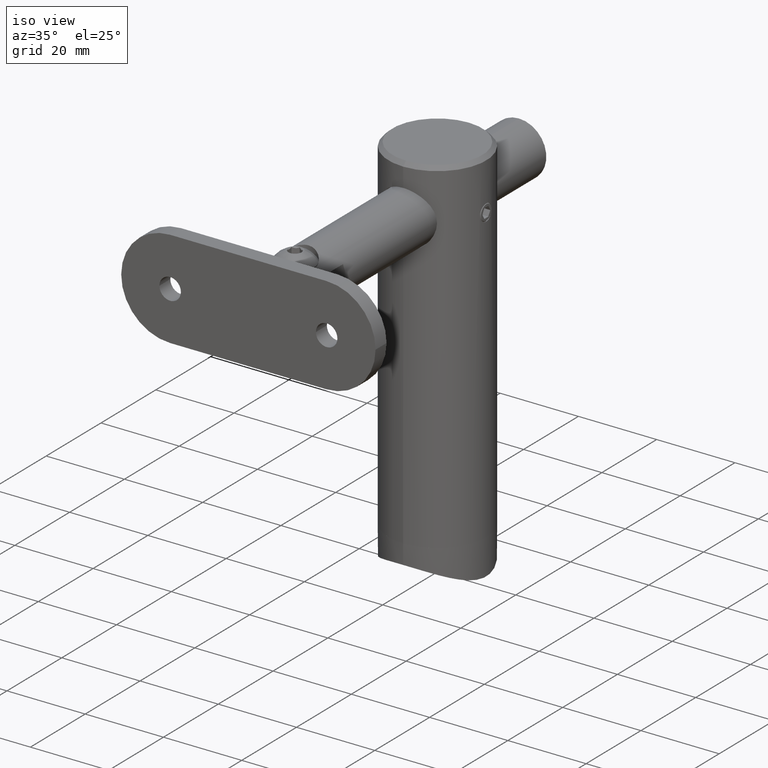
[diagram: clean part render]
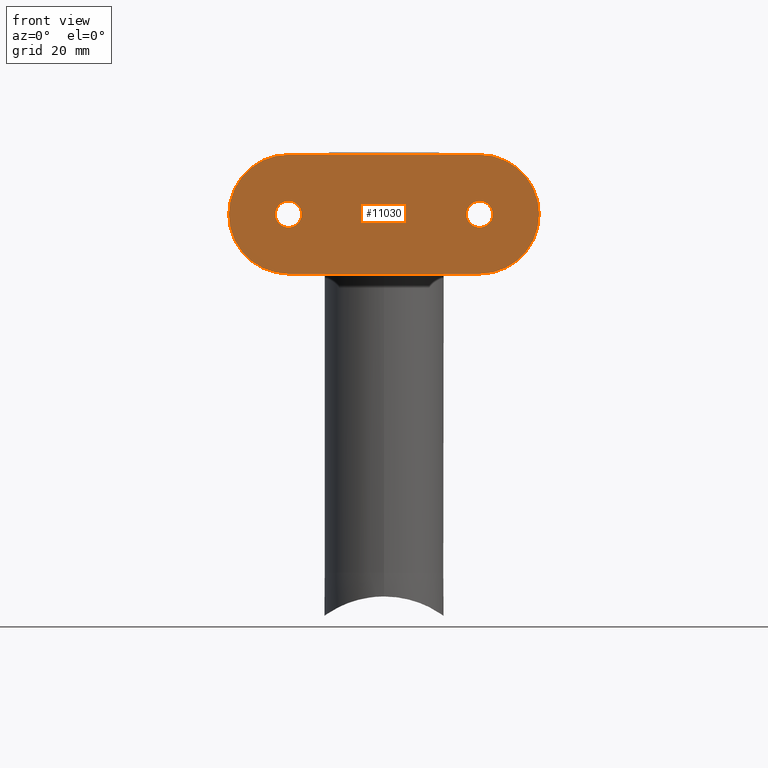
[diagram: tour spotlight — one face highlighted and labeled with its STEP entity id]
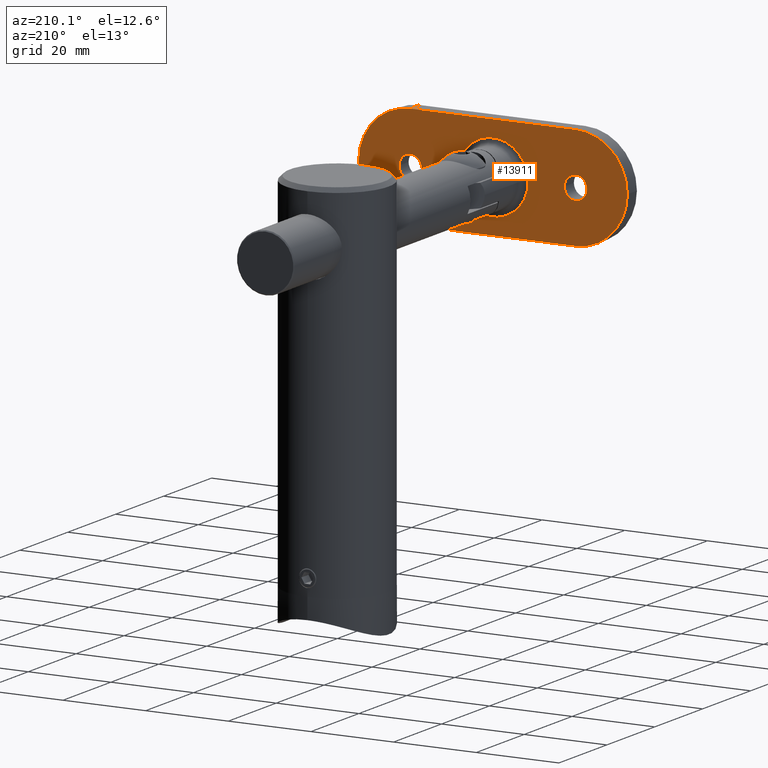
[diagram: tour spotlight — one face highlighted and labeled with its STEP entity id]
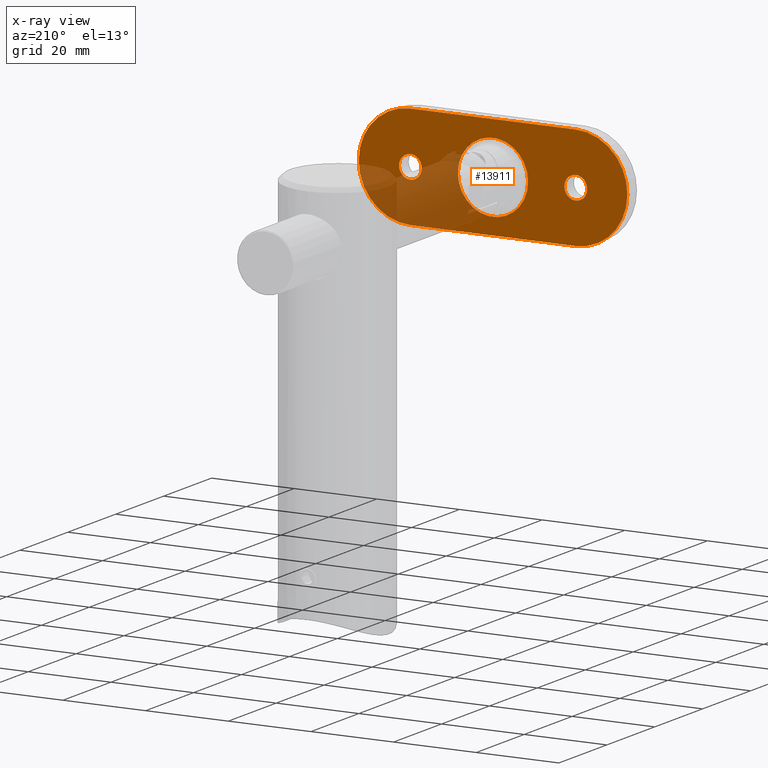
[diagram: x-ray of the same camera — body ghosted, this tour face saturated]
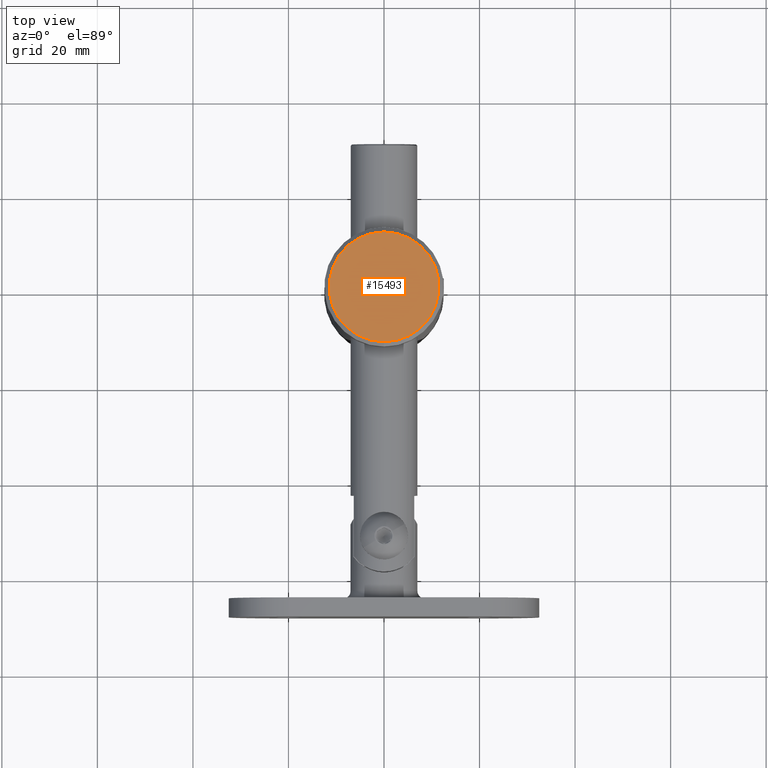
[diagram: tour spotlight — one face highlighted and labeled with its STEP entity id]
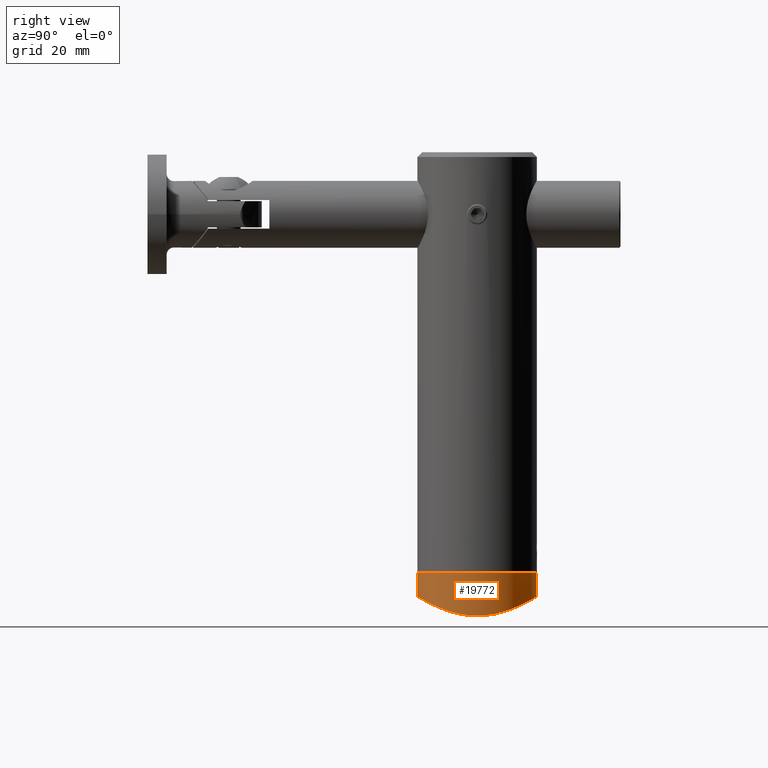
[diagram: tour spotlight — one face highlighted and labeled with its STEP entity id]
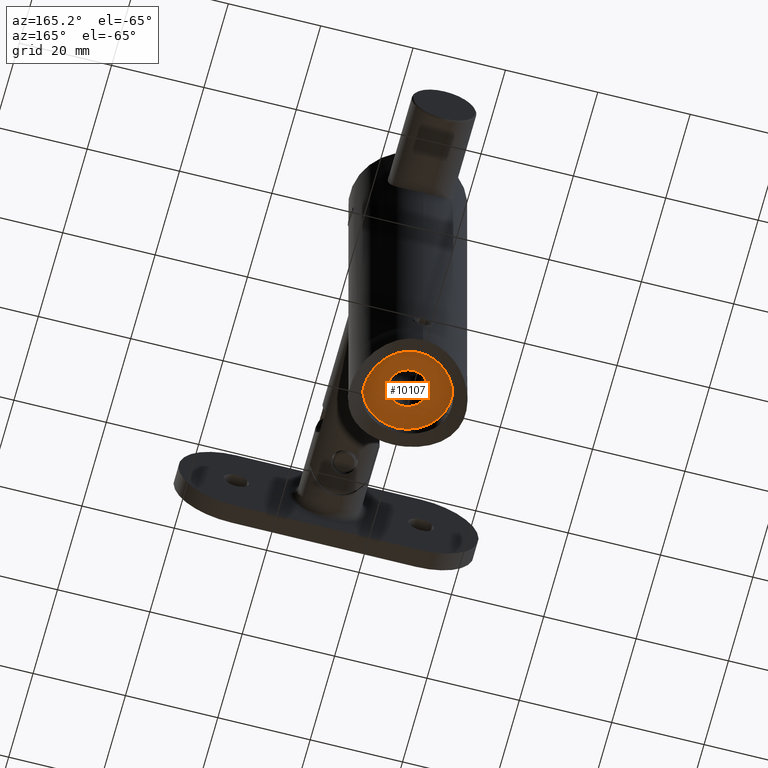
[diagram: tour spotlight — one face highlighted and labeled with its STEP entity id]
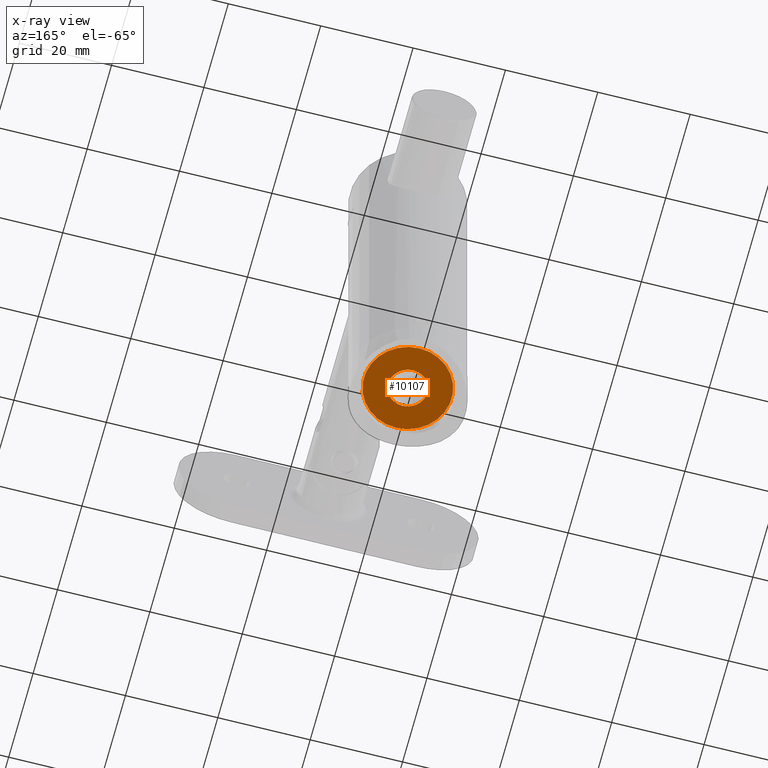
[diagram: x-ray of the same camera — body ghosted, this tour face saturated]
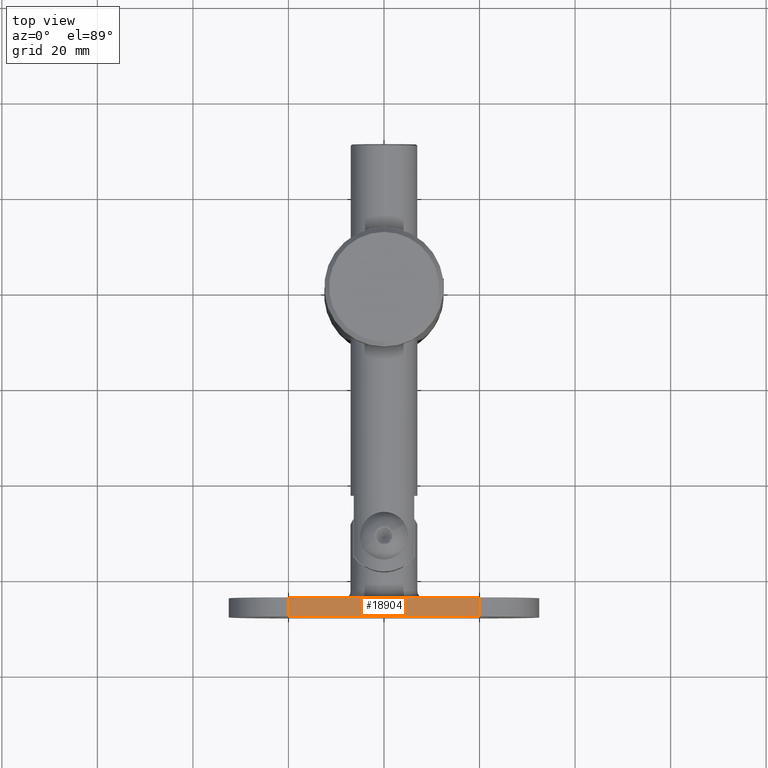
[diagram: tour spotlight — one face highlighted and labeled with its STEP entity id]
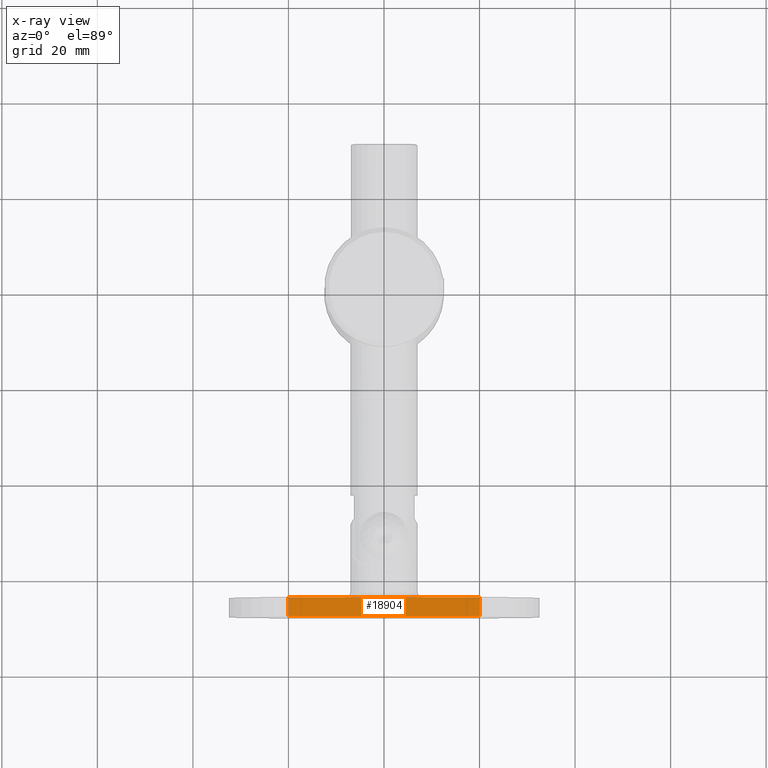
[diagram: x-ray of the same camera — body ghosted, this tour face saturated]
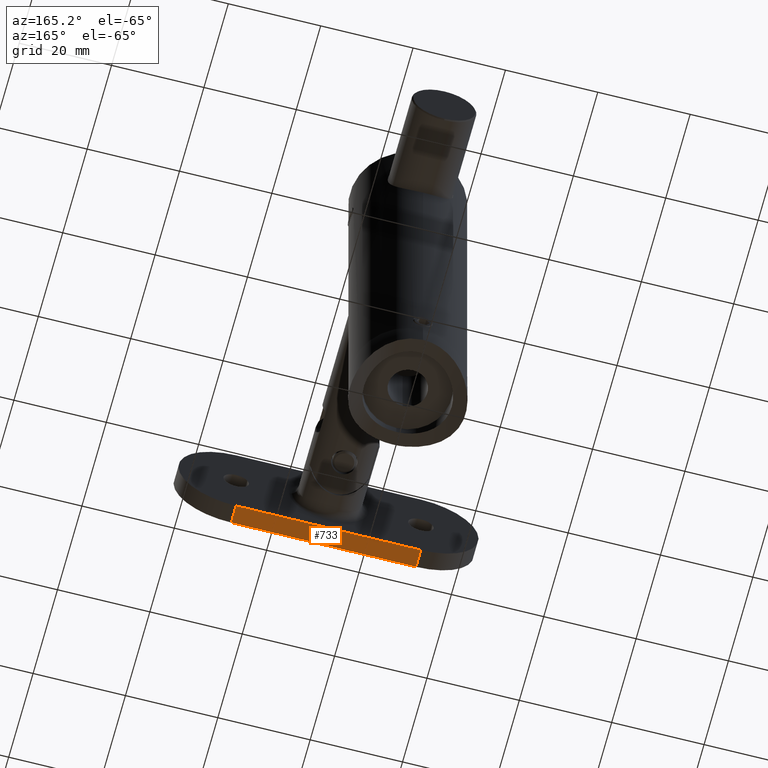
[diagram: tour spotlight — one face highlighted and labeled with its STEP entity id]
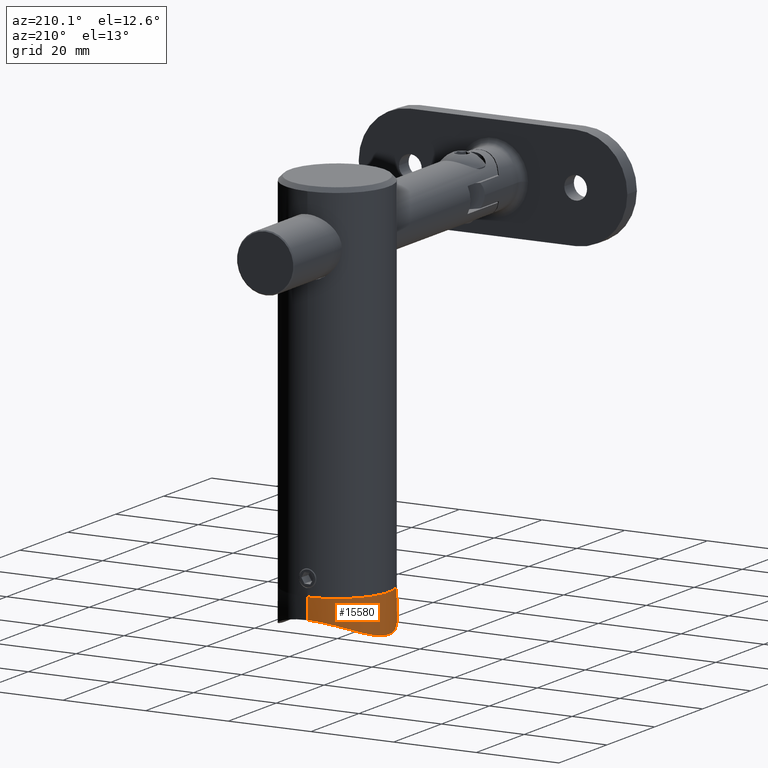
[diagram: tour spotlight — one face highlighted and labeled with its STEP entity id]
A machine part: a face-by-face anatomy tour. The part has 368 B-rep faces; the first image is the clean iso view, then the 8 largest visible faces are spotlighted one at a time (largest first), each with its STEP entity span.

Face 1 — front view, entity #11030. In plain terms, the highlighted planar face has unit normal (-0, 1, -0).
Definition (entity closure, byte-faithful):
#140 = ORIENTED_EDGE ( 'NONE', *, *, #7083, .T. ) ;
#705 = ORIENTED_EDGE ( 'NONE', *, *, #1649, .T. ) ;
#1336 = VERTEX_POINT ( 'NONE', #12923 ) ;
#1529 = CIRCLE ( 'NONE', #16138, 2.749999999999999112 ) ;
#1552 = EDGE_CURVE ( 'NONE', #14561, #4293, #1529, .T. ) ;
#1649 = EDGE_CURVE ( 'NONE', #6553, #8390, #5259, .T. ) ;
#1814 = CIRCLE ( 'NONE', #2389, 2.749999999999999112 ) ;
#1898 = DIRECTION ( 'NONE',  ( 0.000000000000000000, 0.000000000000000000, 1.000000000000000000 ) ) ;
#2177 = ORIENTED_EDGE ( 'NONE', *, *, #17863, .T. ) ;
#2389 = AXIS2_PLACEMENT_3D ( 'NONE', #17145, #4412, #9198 ) ;
#2442 = VERTEX_POINT ( 'NONE', #20321 ) ;
#2521 = DIRECTION ( 'NONE',  ( 0.000000000000000000, -1.000000000000000000, 0.000000000000000000 ) ) ;
#2656 = ORIENTED_EDGE ( 'NONE', *, *, #1552, .F. ) ;
#3099 = ORIENTED_EDGE ( 'NONE', *, *, #16397, .F. ) ;
#3161 = EDGE_LOOP ( 'NONE', ( #4040, #15168 ) ) ;
#3426 = CARTESIAN_POINT ( 'NONE',  ( 12.49999999999999645, 2.000000000000001776, 20.00000000000000000 ) ) ;
#3516 = LINE ( 'NONE', #9566, #18891 ) ;
#3699 = CARTESIAN_POINT ( 'NONE',  ( 0.000000000000000000, 2.000000000000001776, 20.00000000000000000 ) ) ;
#3744 = CARTESIAN_POINT ( 'NONE',  ( 0.000000000000000000, 2.000000000000001776, -20.00000000000000355 ) ) ;
#3923 = DIRECTION ( 'NONE',  ( 0.000000000000000000, 0.000000000000000000, 1.000000000000000000 ) ) ;
#3974 = AXIS2_PLACEMENT_3D ( 'NONE', #6546, #12807, #5002 ) ;
#4040 = ORIENTED_EDGE ( 'NONE', *, *, #9334, .F. ) ;
#4123 = DIRECTION ( 'NONE',  ( 0.000000000000000000, 0.000000000000000000, -1.000000000000000000 ) ) ;
#4293 = VERTEX_POINT ( 'NONE', #18653 ) ;
#4412 = DIRECTION ( 'NONE',  ( 0.000000000000000000, 1.000000000000000000, 0.000000000000000000 ) ) ;
#4657 = EDGE_LOOP ( 'NONE', ( #2656, #13104 ) ) ;
#5002 = DIRECTION ( 'NONE',  ( 0.000000000000000000, 0.000000000000000000, -1.000000000000000000 ) ) ;
#5101 = DIRECTION ( 'NONE',  ( 0.000000000000000000, 1.000000000000000000, 0.000000000000000000 ) ) ;
#5123 = DIRECTION ( 'NONE',  ( 0.000000000000000000, 0.000000000000000000, -1.000000000000000000 ) ) ;
#5259 = CIRCLE ( 'NONE', #5414, 12.50000000000000000 ) ;
#5414 = AXIS2_PLACEMENT_3D ( 'NONE', #3699, #14766, #11725 ) ;
#5792 = AXIS2_PLACEMENT_3D ( 'NONE', #18477, #7204, #3923 ) ;
#5800 = CARTESIAN_POINT ( 'NONE',  ( 3.367778697655220026E-16, 2.000000000000001776, 17.25000000000000000 ) ) ;
#6206 = CIRCLE ( 'NONE', #8164, 2.749999999999999112 ) ;
#6546 = CARTESIAN_POINT ( 'NONE',  ( 0.000000000000000000, 2.000000000000001776, -20.00000000000000355 ) ) ;
#6553 = VERTEX_POINT ( 'NONE', #6701 ) ;
#6584 = AXIS2_PLACEMENT_3D ( 'NONE', #3744, #19598, #14803 ) ;
#6701 = CARTESIAN_POINT ( 'NONE',  ( -12.50000000000001066, 2.000000000000001776, 20.00000000000000000 ) ) ;
#7052 = LINE ( 'NONE', #7092, #11124 ) ;
#7083 = EDGE_CURVE ( 'NONE', #2442, #18404, #15512, .T. ) ;
#7092 = CARTESIAN_POINT ( 'NONE',  ( -12.50000000000001066, 2.000000000000001776, 32.50000000000001421 ) ) ;
#7204 = DIRECTION ( 'NONE',  ( 0.000000000000000000, 1.000000000000000000, 0.000000000000000000 ) ) ;
#8164 = AXIS2_PLACEMENT_3D ( 'NONE', #10360, #13688, #12091 ) ;
#8390 = VERTEX_POINT ( 'NONE', #15931 ) ;
#9198 = DIRECTION ( 'NONE',  ( 0.000000000000000000, 0.000000000000000000, 1.000000000000000000 ) ) ;
#9315 = EDGE_LOOP ( 'NONE', ( #19058, #140, #16553, #3099, #705, #2177 ) ) ;
#9334 = EDGE_CURVE ( 'NONE', #1336, #15841, #1814, .T. ) ;
#9489 = FACE_BOUND ( 'NONE', #4657, .T. ) ;
#9566 = CARTESIAN_POINT ( 'NONE',  ( 12.49999999999999645, 2.000000000000001776, 32.50000000000000000 ) ) ;
#9587 = DIRECTION ( 'NONE',  ( -0.000000000000000000, 1.000000000000000000, -0.000000000000000000 ) ) ;
#10360 = CARTESIAN_POINT ( 'NONE',  ( 0.000000000000000000, 2.000000000000001776, 20.00000000000000000 ) ) ;
#10563 = PLANE ( 'NONE',  #16468 ) ;
#10718 = FACE_OUTER_BOUND ( 'NONE', #9315, .T. ) ;
#11030 = ADVANCED_FACE ( 'NONE', ( #17898, #9489, #10718 ), #10563, .F. ) ;
#11124 = VECTOR ( 'NONE', #19741, 1000.000000000000000 ) ;
#11379 = CARTESIAN_POINT ( 'NONE',  ( 0.000000000000000000, 2.000000000000001776, -20.00000000000000000 ) ) ;
#11454 = CARTESIAN_POINT ( 'NONE',  ( 0.000000000000000000, 2.000000000000001776, -17.25000000000000000 ) ) ;
#11725 = DIRECTION ( 'NONE',  ( 8.881784197001252323E-16, 0.000000000000000000, -1.000000000000000000 ) ) ;
#11809 = EDGE_CURVE ( 'NONE', #17369, #2442, #3516, .T. ) ;
#12091 = DIRECTION ( 'NONE',  ( 0.000000000000000000, 0.000000000000000000, 1.000000000000000000 ) ) ;
#12144 = CARTESIAN_POINT ( 'NONE',  ( -12.50000000000001066, 2.000000000000001776, -20.00000000000000355 ) ) ;
#12757 = DIRECTION ( 'NONE',  ( 0.000000000000000000, 0.000000000000000000, -1.000000000000000000 ) ) ;
#12807 = DIRECTION ( 'NONE',  ( -0.000000000000000000, 1.000000000000000000, -0.000000000000000000 ) ) ;
#12923 = CARTESIAN_POINT ( 'NONE',  ( 0.000000000000000000, 2.000000000000001776, 22.75000000000000000 ) ) ;
#13104 = ORIENTED_EDGE ( 'NONE', *, *, #19354, .F. ) ;
#13688 = DIRECTION ( 'NONE',  ( 0.000000000000000000, 1.000000000000000000, 0.000000000000000000 ) ) ;
#14097 = CIRCLE ( 'NONE', #5792, 2.749999999999999112 ) ;
#14561 = VERTEX_POINT ( 'NONE', #11454 ) ;
#14756 = AXIS2_PLACEMENT_3D ( 'NONE', #19064, #9587, #12757 ) ;
#14766 = DIRECTION ( 'NONE',  ( -0.000000000000000000, 1.000000000000000000, -0.000000000000000000 ) ) ;
#14803 = DIRECTION ( 'NONE',  ( 0.000000000000000000, 0.000000000000000000, -1.000000000000000000 ) ) ;
#15168 = ORIENTED_EDGE ( 'NONE', *, *, #19259, .F. ) ;
#15512 = CIRCLE ( 'NONE', #3974, 12.49999999999999645 ) ;
#15841 = VERTEX_POINT ( 'NONE', #5800 ) ;
#15931 = CARTESIAN_POINT ( 'NONE',  ( 0.000000000000000000, 2.000000000000001776, 32.50000000000000000 ) ) ;
#16138 = AXIS2_PLACEMENT_3D ( 'NONE', #11379, #5101, #1898 ) ;
#16397 = EDGE_CURVE ( 'NONE', #6553, #17541, #7052, .T. ) ;
#16468 = AXIS2_PLACEMENT_3D ( 'NONE', #18247, #2521, #4123 ) ;
#16553 = ORIENTED_EDGE ( 'NONE', *, *, #18090, .T. ) ;
#16843 = CIRCLE ( 'NONE', #6584, 12.49999999999999645 ) ;
#17145 = CARTESIAN_POINT ( 'NONE',  ( 0.000000000000000000, 2.000000000000001776, 20.00000000000000000 ) ) ;
#17369 = VERTEX_POINT ( 'NONE', #3426 ) ;
#17541 = VERTEX_POINT ( 'NONE', #12144 ) ;
#17585 = CIRCLE ( 'NONE', #14756, 12.50000000000000000 ) ;
#17863 = EDGE_CURVE ( 'NONE', #8390, #17369, #17585, .T. ) ;
#17898 = FACE_BOUND ( 'NONE', #3161, .T. ) ;
#18090 = EDGE_CURVE ( 'NONE', #18404, #17541, #16843, .T. ) ;
#18247 = CARTESIAN_POINT ( 'NONE',  ( -12.50000000000001066, 2.000000000000001776, 32.50000000000001421 ) ) ;
#18404 = VERTEX_POINT ( 'NONE', #18862 ) ;
#18477 = CARTESIAN_POINT ( 'NONE',  ( 0.000000000000000000, 2.000000000000001776, -20.00000000000000000 ) ) ;
#18653 = CARTESIAN_POINT ( 'NONE',  ( 3.367778697655220026E-16, 2.000000000000001776, -22.75000000000000000 ) ) ;
#18862 = CARTESIAN_POINT ( 'NONE',  ( 0.000000000000000000, 2.000000000000001776, -32.50000000000000000 ) ) ;
#18891 = VECTOR ( 'NONE', #5123, 1000.000000000000000 ) ;
#19058 = ORIENTED_EDGE ( 'NONE', *, *, #11809, .T. ) ;
#19064 = CARTESIAN_POINT ( 'NONE',  ( 0.000000000000000000, 2.000000000000001776, 20.00000000000000000 ) ) ;
#19259 = EDGE_CURVE ( 'NONE', #15841, #1336, #6206, .T. ) ;
#19354 = EDGE_CURVE ( 'NONE', #4293, #14561, #14097, .T. ) ;
#19598 = DIRECTION ( 'NONE',  ( -0.000000000000000000, 1.000000000000000000, -0.000000000000000000 ) ) ;
#19741 = DIRECTION ( 'NONE',  ( 0.000000000000000000, 0.000000000000000000, -1.000000000000000000 ) ) ;
#20321 = CARTESIAN_POINT ( 'NONE',  ( 12.49999999999999645, 2.000000000000001776, -20.00000000000000355 ) ) ;

Face 2 — auxiliary view, entity #13911. An x-ray twin of the same camera follows (body ghosted, this face saturated) — the face is partly hidden behind the body. In plain terms, the highlighted planar face has unit normal (0, -1, 0).
Definition (entity closure, byte-faithful):
#14 = EDGE_CURVE ( 'NONE', #3395, #9499, #4011, .T. ) ;
#36 = EDGE_CURVE ( 'NONE', #16791, #4260, #2019, .T. ) ;
#38 = CARTESIAN_POINT ( 'NONE',  ( 12.49999999999999645, -2.000000000000001776, -20.00000000000000355 ) ) ;
#64 = EDGE_LOOP ( 'NONE', ( #5199, #11921 ) ) ;
#191 = EDGE_CURVE ( 'NONE', #9499, #3395, #6302, .T. ) ;
#214 = AXIS2_PLACEMENT_3D ( 'NONE', #11947, #15133, #10570 ) ;
#674 = EDGE_CURVE ( 'NONE', #3834, #12723, #11456, .T. ) ;
#1097 = EDGE_CURVE ( 'NONE', #1425, #18315, #4015, .T. ) ;
#1425 = VERTEX_POINT ( 'NONE', #7339 ) ;
#1793 = DIRECTION ( 'NONE',  ( 0.000000000000000000, 0.000000000000000000, 1.000000000000000000 ) ) ;
#1947 = CIRCLE ( 'NONE', #16373, 8.500000000000000000 ) ;
#2019 = CIRCLE ( 'NONE', #17590, 2.749999999999999112 ) ;
#2247 = CARTESIAN_POINT ( 'NONE',  ( 0.000000000000000000, -2.000000000000001776, -20.00000000000000355 ) ) ;
#2289 = ORIENTED_EDGE ( 'NONE', *, *, #674, .F. ) ;
#3106 = AXIS2_PLACEMENT_3D ( 'NONE', #6765, #16099, #14618 ) ;
#3158 = CARTESIAN_POINT ( 'NONE',  ( 0.000000000000000000, -2.000000000000001776, -20.00000000000000000 ) ) ;
#3219 = VERTEX_POINT ( 'NONE', #14948 ) ;
#3395 = VERTEX_POINT ( 'NONE', #14055 ) ;
#3615 = AXIS2_PLACEMENT_3D ( 'NONE', #9370, #8174, #1793 ) ;
#3834 = VERTEX_POINT ( 'NONE', #14289 ) ;
#3998 = EDGE_CURVE ( 'NONE', #18315, #12723, #12783, .T. ) ;
#4011 = CIRCLE ( 'NONE', #8432, 2.749999999999999112 ) ;
#4015 = CIRCLE ( 'NONE', #8838, 12.50000000000000000 ) ;
#4159 = ORIENTED_EDGE ( 'NONE', *, *, #6391, .T. ) ;
#4260 = VERTEX_POINT ( 'NONE', #5508 ) ;
#4451 = FACE_BOUND ( 'NONE', #64, .T. ) ;
#4891 = AXIS2_PLACEMENT_3D ( 'NONE', #3158, #20330, #15713 ) ;
#5191 = CARTESIAN_POINT ( 'NONE',  ( 0.000000000000000000, -2.000000000000001776, 32.50000000000000000 ) ) ;
#5199 = ORIENTED_EDGE ( 'NONE', *, *, #191, .T. ) ;
#5450 = DIRECTION ( 'NONE',  ( 0.000000000000000000, 0.000000000000000000, 1.000000000000000000 ) ) ;
#5508 = CARTESIAN_POINT ( 'NONE',  ( 3.367778697655220026E-16, -2.000000000000001776, -22.75000000000000000 ) ) ;
#5612 = CARTESIAN_POINT ( 'NONE',  ( 0.000000000000000000, -2.000000000000001776, -20.00000000000000000 ) ) ;
#6302 = CIRCLE ( 'NONE', #214, 2.749999999999999112 ) ;
#6391 = EDGE_CURVE ( 'NONE', #4260, #16791, #14484, .T. ) ;
#6467 = CIRCLE ( 'NONE', #3106, 12.50000000000000000 ) ;
#6762 = DIRECTION ( 'NONE',  ( 0.000000000000000000, 0.000000000000000000, 1.000000000000000000 ) ) ;
#6765 = CARTESIAN_POINT ( 'NONE',  ( 0.000000000000000000, -2.000000000000001776, 20.00000000000000000 ) ) ;
#6993 = DIRECTION ( 'NONE',  ( 0.000000000000000000, 1.000000000000000000, 0.000000000000000000 ) ) ;
#7072 = ORIENTED_EDGE ( 'NONE', *, *, #1097, .T. ) ;
#7339 = CARTESIAN_POINT ( 'NONE',  ( -12.50000000000001066, -2.000000000000001776, -20.00000000000000355 ) ) ;
#7653 = EDGE_LOOP ( 'NONE', ( #7072, #20414, #2289, #11568, #10264, #9427 ) ) ;
#7937 = FACE_BOUND ( 'NONE', #14580, .T. ) ;
#8174 = DIRECTION ( 'NONE',  ( 0.000000000000000000, 1.000000000000000000, 0.000000000000000000 ) ) ;
#8420 = FACE_BOUND ( 'NONE', #19304, .T. ) ;
#8432 = AXIS2_PLACEMENT_3D ( 'NONE', #18322, #13407, #13542 ) ;
#8838 = AXIS2_PLACEMENT_3D ( 'NONE', #2247, #19711, #12011 ) ;
#9370 = CARTESIAN_POINT ( 'NONE',  ( -12.50000000000001066, -2.000000000000001776, 32.50000000000001421 ) ) ;
#9427 = ORIENTED_EDGE ( 'NONE', *, *, #11255, .T. ) ;
#9499 = VERTEX_POINT ( 'NONE', #17414 ) ;
#9728 = CARTESIAN_POINT ( 'NONE',  ( 0.000000000000000000, -2.000000000000001776, -20.00000000000000355 ) ) ;
#9747 = AXIS2_PLACEMENT_3D ( 'NONE', #16489, #19528, #10118 ) ;
#10118 = DIRECTION ( 'NONE',  ( 0.000000000000000000, 0.000000000000000000, 1.000000000000000000 ) ) ;
#10140 = CARTESIAN_POINT ( 'NONE',  ( 0.000000000000000000, -2.000000000000001776, 0.000000000000000000 ) ) ;
#10264 = ORIENTED_EDGE ( 'NONE', *, *, #18021, .T. ) ;
#10375 = DIRECTION ( 'NONE',  ( 0.000000000000000000, 1.000000000000000000, 0.000000000000000000 ) ) ;
#10570 = DIRECTION ( 'NONE',  ( 0.000000000000000000, 0.000000000000000000, 1.000000000000000000 ) ) ;
#10723 = VERTEX_POINT ( 'NONE', #18766 ) ;
#11255 = EDGE_CURVE ( 'NONE', #10723, #1425, #11684, .T. ) ;
#11456 = LINE ( 'NONE', #12331, #19391 ) ;
#11567 = DIRECTION ( 'NONE',  ( -0.000000000000000000, -1.000000000000000000, -0.000000000000000000 ) ) ;
#11568 = ORIENTED_EDGE ( 'NONE', *, *, #17387, .T. ) ;
#11650 = DIRECTION ( 'NONE',  ( 0.000000000000000000, 1.000000000000000000, 0.000000000000000000 ) ) ;
#11684 = LINE ( 'NONE', #15619, #15430 ) ;
#11740 = DIRECTION ( 'NONE',  ( 0.000000000000000000, 0.000000000000000000, 1.000000000000000000 ) ) ;
#11799 = CARTESIAN_POINT ( 'NONE',  ( 0.000000000000000000, -2.000000000000002665, 8.500000000000000000 ) ) ;
#11856 = CIRCLE ( 'NONE', #9747, 12.50000000000000000 ) ;
#11921 = ORIENTED_EDGE ( 'NONE', *, *, #14, .T. ) ;
#11947 = CARTESIAN_POINT ( 'NONE',  ( 0.000000000000000000, -2.000000000000001776, 20.00000000000000000 ) ) ;
#12011 = DIRECTION ( 'NONE',  ( 8.881784197001252323E-16, 0.000000000000000000, 1.000000000000000000 ) ) ;
#12331 = CARTESIAN_POINT ( 'NONE',  ( 12.49999999999999645, -2.000000000000001776, 32.50000000000000000 ) ) ;
#12533 = CARTESIAN_POINT ( 'NONE',  ( 0.000000000000000000, -2.000000000000001776, -17.25000000000000000 ) ) ;
#12723 = VERTEX_POINT ( 'NONE', #38 ) ;
#12783 = CIRCLE ( 'NONE', #18418, 12.50000000000000000 ) ;
#12815 = ORIENTED_EDGE ( 'NONE', *, *, #36, .T. ) ;
#12931 = VERTEX_POINT ( 'NONE', #11799 ) ;
#13407 = DIRECTION ( 'NONE',  ( 0.000000000000000000, 1.000000000000000000, 0.000000000000000000 ) ) ;
#13542 = DIRECTION ( 'NONE',  ( 0.000000000000000000, 0.000000000000000000, 1.000000000000000000 ) ) ;
#13911 = ADVANCED_FACE ( 'NONE', ( #8420, #4451, #7937, #17345 ), #15932, .F. ) ;
#14048 = VERTEX_POINT ( 'NONE', #5191 ) ;
#14055 = CARTESIAN_POINT ( 'NONE',  ( 3.367778697655220026E-16, -2.000000000000001776, 17.25000000000000000 ) ) ;
#14289 = CARTESIAN_POINT ( 'NONE',  ( 12.49999999999999645, -2.000000000000001776, 20.00000000000000000 ) ) ;
#14484 = CIRCLE ( 'NONE', #4891, 2.749999999999999112 ) ;
#14580 = EDGE_LOOP ( 'NONE', ( #12815, #4159 ) ) ;
#14618 = DIRECTION ( 'NONE',  ( 0.000000000000000000, 0.000000000000000000, 1.000000000000000000 ) ) ;
#14948 = CARTESIAN_POINT ( 'NONE',  ( 1.040949779275250140E-15, -2.000000000000002665, -8.500000000000000000 ) ) ;
#15007 = DIRECTION ( 'NONE',  ( 0.000000000000000000, 0.000000000000000000, 1.000000000000000000 ) ) ;
#15133 = DIRECTION ( 'NONE',  ( 0.000000000000000000, 1.000000000000000000, 0.000000000000000000 ) ) ;
#15322 = AXIS2_PLACEMENT_3D ( 'NONE', #10140, #11650, #5450 ) ;
#15430 = VECTOR ( 'NONE', #15492, 1000.000000000000000 ) ;
#15492 = DIRECTION ( 'NONE',  ( 0.000000000000000000, 0.000000000000000000, -1.000000000000000000 ) ) ;
#15619 = CARTESIAN_POINT ( 'NONE',  ( -12.50000000000001066, -2.000000000000001776, 32.50000000000001421 ) ) ;
#15713 = DIRECTION ( 'NONE',  ( 0.000000000000000000, 0.000000000000000000, 1.000000000000000000 ) ) ;
#15932 = PLANE ( 'NONE',  #3615 ) ;
#16099 = DIRECTION ( 'NONE',  ( -0.000000000000000000, -1.000000000000000000, -0.000000000000000000 ) ) ;
#16291 = CIRCLE ( 'NONE', #15322, 8.500000000000000000 ) ;
#16373 = AXIS2_PLACEMENT_3D ( 'NONE', #18215, #10375, #15007 ) ;
#16489 = CARTESIAN_POINT ( 'NONE',  ( 0.000000000000000000, -2.000000000000001776, 20.00000000000000000 ) ) ;
#16791 = VERTEX_POINT ( 'NONE', #12533 ) ;
#17236 = ORIENTED_EDGE ( 'NONE', *, *, #18671, .T. ) ;
#17316 = DIRECTION ( 'NONE',  ( 0.000000000000000000, 0.000000000000000000, -1.000000000000000000 ) ) ;
#17345 = FACE_OUTER_BOUND ( 'NONE', #7653, .T. ) ;
#17387 = EDGE_CURVE ( 'NONE', #3834, #14048, #6467, .T. ) ;
#17414 = CARTESIAN_POINT ( 'NONE',  ( 0.000000000000000000, -2.000000000000001776, 22.75000000000000000 ) ) ;
#17590 = AXIS2_PLACEMENT_3D ( 'NONE', #5612, #6993, #11740 ) ;
#18021 = EDGE_CURVE ( 'NONE', #14048, #10723, #11856, .T. ) ;
#18215 = CARTESIAN_POINT ( 'NONE',  ( 0.000000000000000000, -2.000000000000001776, 0.000000000000000000 ) ) ;
#18315 = VERTEX_POINT ( 'NONE', #19150 ) ;
#18322 = CARTESIAN_POINT ( 'NONE',  ( 0.000000000000000000, -2.000000000000001776, 20.00000000000000000 ) ) ;
#18418 = AXIS2_PLACEMENT_3D ( 'NONE', #9728, #11567, #6762 ) ;
#18671 = EDGE_CURVE ( 'NONE', #3219, #12931, #1947, .T. ) ;
#18766 = CARTESIAN_POINT ( 'NONE',  ( -12.50000000000001066, -2.000000000000001776, 20.00000000000000000 ) ) ;
#19150 = CARTESIAN_POINT ( 'NONE',  ( 0.000000000000000000, -2.000000000000001776, -32.50000000000000000 ) ) ;
#19304 = EDGE_LOOP ( 'NONE', ( #20132, #17236 ) ) ;
#19391 = VECTOR ( 'NONE', #17316, 1000.000000000000000 ) ;
#19528 = DIRECTION ( 'NONE',  ( -0.000000000000000000, -1.000000000000000000, -0.000000000000000000 ) ) ;
#19656 = EDGE_CURVE ( 'NONE', #12931, #3219, #16291, .T. ) ;
#19711 = DIRECTION ( 'NONE',  ( -0.000000000000000000, -1.000000000000000000, -0.000000000000000000 ) ) ;
#20132 = ORIENTED_EDGE ( 'NONE', *, *, #19656, .T. ) ;
#20330 = DIRECTION ( 'NONE',  ( 0.000000000000000000, 1.000000000000000000, 0.000000000000000000 ) ) ;
#20414 = ORIENTED_EDGE ( 'NONE', *, *, #3998, .T. ) ;

Face 3 — top view, entity #15493. In plain terms, the highlighted planar face has unit normal (0, -0, 1).
Definition (entity closure, byte-faithful):
#80 = DIRECTION ( 'NONE',  ( 0.000000000000000000, -1.098045870766271941E-16, 1.000000000000000000 ) ) ;
#218 = DIRECTION ( 'NONE',  ( 0.000000000000000000, -1.000000000000000000, 0.000000000000000000 ) ) ;
#514 = CIRCLE ( 'NONE', #18488, 11.50000000000000888 ) ;
#2299 = ORIENTED_EDGE ( 'NONE', *, *, #18970, .T. ) ;
#3342 = EDGE_LOOP ( 'NONE', ( #12563, #2299 ) ) ;
#4298 = DIRECTION ( 'NONE',  ( 0.000000000000000000, -1.098045870766271941E-16, 1.000000000000000000 ) ) ;
#5058 = VERTEX_POINT ( 'NONE', #17201 ) ;
#5061 = DIRECTION ( 'NONE',  ( 0.000000000000000000, -1.000000000000000000, -1.098045870766271941E-16 ) ) ;
#6077 = AXIS2_PLACEMENT_3D ( 'NONE', #20069, #4298, #10589 ) ;
#7888 = FACE_OUTER_BOUND ( 'NONE', #3342, .T. ) ;
#8186 = DIRECTION ( 'NONE',  ( 0.000000000000000000, -1.098045870766271941E-16, 1.000000000000000000 ) ) ;
#9704 = VERTEX_POINT ( 'NONE', #11503 ) ;
#9711 = CARTESIAN_POINT ( 'NONE',  ( 0.000000000000000000, -6.938893903907228378E-15, 88.00000000000000000 ) ) ;
#10589 = DIRECTION ( 'NONE',  ( 0.000000000000000000, -1.000000000000000000, 0.000000000000000000 ) ) ;
#11503 = CARTESIAN_POINT ( 'NONE',  ( 0.000000000000000000, 11.50000000000000178, 88.00000000000000000 ) ) ;
#12383 = AXIS2_PLACEMENT_3D ( 'NONE', #16004, #80, #5061 ) ;
#12563 = ORIENTED_EDGE ( 'NONE', *, *, #16165, .T. ) ;
#12605 = CIRCLE ( 'NONE', #6077, 11.50000000000000888 ) ;
#15493 = ADVANCED_FACE ( 'NONE', ( #7888 ), #19243, .T. ) ;
#16004 = CARTESIAN_POINT ( 'NONE',  ( 0.000000000000000000, -6.938893903907228378E-15, 88.00000000000000000 ) ) ;
#16165 = EDGE_CURVE ( 'NONE', #9704, #5058, #514, .T. ) ;
#17201 = CARTESIAN_POINT ( 'NONE',  ( 1.469576158976824736E-15, -11.50000000000001599, 88.00000000000000000 ) ) ;
#18488 = AXIS2_PLACEMENT_3D ( 'NONE', #9711, #8186, #218 ) ;
#18970 = EDGE_CURVE ( 'NONE', #5058, #9704, #12605, .T. ) ;
#19243 = PLANE ( 'NONE',  #12383 ) ;
#20069 = CARTESIAN_POINT ( 'NONE',  ( 0.000000000000000000, -6.938893903907228378E-15, 88.00000000000000000 ) ) ;

Face 4 — right view, entity #19772. In plain terms, the highlighted cylindrical surface (partial cylindrical patch) has radius 12.5 mm, axis along (0, 0, -1).
Definition (entity closure, byte-faithful):
#23 = CARTESIAN_POINT ( 'NONE',  ( 2.913028033381143356, -12.16292737376220501, -0.1970903410221248320 ) ) ;
#819 = CARTESIAN_POINT ( 'NONE',  ( 0.000000000000000000, 12.50000000000000000, -5.261240927112904875E-16 ) ) ;
#966 = CARTESIAN_POINT ( 'NONE',  ( 0.000000000000000000, -6.123233995736764310E-16, 4.999999999999998224 ) ) ;
#1338 = CARTESIAN_POINT ( 'NONE',  ( 8.576233453199916923, -9.102626546136086461, -1.809681003019513623 ) ) ;
#1400 = CARTESIAN_POINT ( 'NONE',  ( 5.634036949567876817, -11.18857916297122657, -0.7475340222135680168 ) ) ;
#1530 = CARTESIAN_POINT ( 'NONE',  ( 9.421823641441763542, -8.253338742496664437, -2.198572594055990148 ) ) ;
#2553 = DIRECTION ( 'NONE',  ( -0.000000000000000000, 1.224646799147353207E-16, -1.000000000000000000 ) ) ;
#2864 = CARTESIAN_POINT ( 'NONE',  ( 0.4231827426424521477, -12.50000000000000178, 3.049318610115447941E-17 ) ) ;
#2993 = CARTESIAN_POINT ( 'NONE',  ( 2.099149467039291839, -12.32948117877257133, -0.1002009966568829374 ) ) ;
#3038 = EDGE_LOOP ( 'NONE', ( #18351, #10996, #5552, #5976 ) ) ;
#3069 = CARTESIAN_POINT ( 'NONE',  ( 10.59835307524082815, -6.639730706434157526, -2.837515640770630121 ) ) ;
#3135 = CARTESIAN_POINT ( 'NONE',  ( 8.275085783090288416, 9.377256695960113575, -1.678894091352529871 ) ) ;
#3586 = LINE ( 'NONE', #9255, #20198 ) ;
#3947 = CARTESIAN_POINT ( 'NONE',  ( 3.299544761782136071, 12.06386656912338573, -0.2544362983334328976 ) ) ;
#4532 = CARTESIAN_POINT ( 'NONE',  ( 10.14840342747128865, 7.308901243718507246, -2.585073453788892195 ) ) ;
#4604 = CARTESIAN_POINT ( 'NONE',  ( 12.47743914675955779, 0.8590761027902540370, -4.060680339665353245 ) ) ;
#4661 = CARTESIAN_POINT ( 'NONE',  ( 12.49952788043968255, 0.4368485482069777714, -4.076863514619261331 ) ) ;
#4690 = CIRCLE ( 'NONE', #5385, 12.50000000000000000 ) ;
#4728 = CARTESIAN_POINT ( 'NONE',  ( 12.05928981790097509, 3.315947863389200112, -3.763379523277600835 ) ) ;
#5130 = EDGE_CURVE ( 'NONE', #10458, #10397, #3586, .T. ) ;
#5385 = AXIS2_PLACEMENT_3D ( 'NONE', #966, #2553, #5486 ) ;
#5436 = CARTESIAN_POINT ( 'NONE',  ( 0.000000000000000000, 12.50000000000000000, 5.000000000000000000 ) ) ;
#5486 = DIRECTION ( 'NONE',  ( 0.000000000000000000, 1.000000000000000000, 1.387778780781445676E-16 ) ) ;
#5552 = ORIENTED_EDGE ( 'NONE', *, *, #18339, .F. ) ;
#5976 = ORIENTED_EDGE ( 'NONE', *, *, #17202, .F. ) ;
#6081 = CARTESIAN_POINT ( 'NONE',  ( 10.81845405890102718, 6.312809980033599722, -2.960938029448109354 ) ) ;
#6214 = CARTESIAN_POINT ( 'NONE',  ( 10.80857782698150693, -6.291928922265640267, -2.960889035143796644 ) ) ;
#6284 = CARTESIAN_POINT ( 'NONE',  ( 11.67210911516328586, 4.491739155361240243, -3.501495300727552884 ) ) ;
#6344 = CARTESIAN_POINT ( 'NONE',  ( 12.16283172011047320, 2.913318855141288299, -3.835786719495810182 ) ) ;
#7435 = CARTESIAN_POINT ( 'NONE',  ( 5.615852831644743581, 11.19741679516262600, -0.7426697937745310174 ) ) ;
#7912 = CARTESIAN_POINT ( 'NONE',  ( 3.314268895872203302, -12.05973822206781776, -0.2568123239795945811 ) ) ;
#9067 = CARTESIAN_POINT ( 'NONE',  ( 0.000000000000000000, 12.50000000000000000, 1.530808498934191521E-15 ) ) ;
#9245 = CARTESIAN_POINT ( 'NONE',  ( 8.277917003856295253, -9.374850157636904768, -1.680064173656782511 ) ) ;
#9252 = DIRECTION ( 'NONE',  ( -0.000000000000000000, 1.224646799147353207E-16, -1.000000000000000000 ) ) ;
#9255 = CARTESIAN_POINT ( 'NONE',  ( 1.530808498934191521E-15, -12.50000000000000000, -1.530808498934191521E-15 ) ) ;
#9319 = CARTESIAN_POINT ( 'NONE',  ( 12.39224670344945345, 1.690183733302201174, -3.998982945155021174 ) ) ;
#9325 = DIRECTION ( 'NONE',  ( 0.000000000000000000, 1.000000000000000000, 1.224646799147353207E-16 ) ) ;
#9380 = CARTESIAN_POINT ( 'NONE',  ( 11.19951824176104260, 5.610365273027625221, -3.195789650799768289 ) ) ;
#9512 = CARTESIAN_POINT ( 'NONE',  ( 11.36768113948518533, -5.214514510065638042, -3.304441698743988187 ) ) ;
#10397 = VERTEX_POINT ( 'NONE', #13420 ) ;
#10458 = VERTEX_POINT ( 'NONE', #20267 ) ;
#10830 = CARTESIAN_POINT ( 'NONE',  ( 9.398677270982503273, 8.250758313400195831, -2.195094919896832586 ) ) ;
#10892 = CARTESIAN_POINT ( 'NONE',  ( 4.497906677117311069, -11.66996163373024764, -0.4789896541132562247 ) ) ;
#10996 = ORIENTED_EDGE ( 'NONE', *, *, #5130, .T. ) ;
#11033 = CARTESIAN_POINT ( 'NONE',  ( 12.50092163456458572, -0.8325225752573196525, -4.077880983653365377 ) ) ;
#11089 = CARTESIAN_POINT ( 'NONE',  ( 0.8493063021244323663, -12.47821017736088756, -0.01286860730927485812 ) ) ;
#11464 = CARTESIAN_POINT ( 'NONE',  ( 0.000000000000000000, 12.50000000000000000, -5.261240927112904875E-16 ) ) ;
#11701 = CARTESIAN_POINT ( 'NONE',  ( 2.897069353050997886, 12.16672379034243612, -0.1948899815732027530 ) ) ;
#12349 = FACE_OUTER_BOUND ( 'NONE', #3038, .T. ) ;
#12483 = CARTESIAN_POINT ( 'NONE',  ( 9.926636468171464500, -7.639131853456513355, -2.460587857928715039 ) ) ;
#12616 = CARTESIAN_POINT ( 'NONE',  ( 7.658649217430773426, 9.887116871149988384, -1.428917258316854344 ) ) ;
#12872 = VECTOR ( 'NONE', #15429, 1000.000000000000000 ) ;
#13420 = CARTESIAN_POINT ( 'NONE',  ( 1.530808498934191521E-15, -12.50000000000000000, 0.000000000000000000 ) ) ;
#13473 = B_SPLINE_CURVE_WITH_KNOTS ( 'NONE', 3,
 ( #11464, #18889, #20511, #11701, #3947, #16375, #14677, #7435, #16129, #15605, #12616, #3135, #17124, #15539, #10830, #20500, #4532, #6081, #9380, #6284, #18789, #4728, #6344, #18731, #9319, #4604, #4661, #11033, #17265, #20372, #15813, #17191, #14205, #9512, #14134, #6214, #3069, #12483, #1530, #1338, #9245, #13939, #15755, #20444, #1400, #10892, #17395, #7912, #23, #2993, #18994, #11089, #2864, #17324 ),
 .UNSPECIFIED., .F., .F.,
 ( 4, 2, 2, 2, 2, 2, 2, 2, 2, 2, 2, 2, 2, 2, 2, 2, 2, 2, 2, 2, 2, 2, 2, 2, 2, 2, 4 ),
 ( 0.04004282410750471810, 0.04254226347006971609, 0.04379198315135222203, 0.04504170283263472102, 0.04754114219519971901, 0.04879086187648222495, 0.05004058155776472394, 0.05129030123904722294, 0.05254002092032972887, 0.05503946028289473380, 0.05628917996417723280, 0.05753889964545973179, 0.05878861932674223079, 0.06003833900802472978, 0.06253777837058974165, 0.06378749805187224065, 0.06503721773315473964, 0.06628693741443722476, 0.06753665709571973763, 0.07003609645828472174, 0.07128581613956722074, 0.07253553582084971973, 0.07503497518341471773, 0.07628469486469721672, 0.07753441454597971572, 0.07878413422726221471, 0.08003385390854471371 ),
 .UNSPECIFIED. ) ;
#13939 = CARTESIAN_POINT ( 'NONE',  ( 7.658205628427102063, -9.887548328762056471, -1.428715490893919027 ) ) ;
#13945 = CARTESIAN_POINT ( 'NONE',  ( 0.000000000000000000, 0.000000000000000000, 0.000000000000000000 ) ) ;
#14134 = CARTESIAN_POINT ( 'NONE',  ( 11.19286692429163033, -5.579736034962373026, -3.194160573709634576 ) ) ;
#14205 = CARTESIAN_POINT ( 'NONE',  ( 11.68253881569350128, -4.464708600178402875, -3.508378586956061973 ) ) ;
#14677 = CARTESIAN_POINT ( 'NONE',  ( 4.484770986791653868, 11.67494392594038644, -0.4761762759779024634 ) ) ;
#15063 = VERTEX_POINT ( 'NONE', #5436 ) ;
#15429 = DIRECTION ( 'NONE',  ( -0.000000000000000000, 1.224646799147353207E-16, -1.000000000000000000 ) ) ;
#15539 = CARTESIAN_POINT ( 'NONE',  ( 9.131153934576976994, 8.545773481795480464, -2.064755425040019521 ) ) ;
#15579 = CYLINDRICAL_SURFACE ( 'NONE', #16776, 12.50000000000000000 ) ;
#15605 = CARTESIAN_POINT ( 'NONE',  ( 7.335528771759538991, 10.12938846727852393, -1.306364138595596858 ) ) ;
#15755 = CARTESIAN_POINT ( 'NONE',  ( 7.337423735946516423, -10.12782281091194569, -1.307140519180895577 ) ) ;
#15813 = CARTESIAN_POINT ( 'NONE',  ( 12.06641939663192176, -3.289765162964158662, -3.768324835594353939 ) ) ;
#16129 = CARTESIAN_POINT ( 'NONE',  ( 6.327442067174433582, 10.81070993117193701, -0.9537559661941126254 ) ) ;
#16375 = CARTESIAN_POINT ( 'NONE',  ( 4.096177303198103026, 11.81715717646936170, -0.3955541790620945020 ) ) ;
#16776 = AXIS2_PLACEMENT_3D ( 'NONE', #13945, #9252, #9325 ) ;
#17124 = CARTESIAN_POINT ( 'NONE',  ( 8.569357823279592168, 9.109024265841888734, -1.806659297143442533 ) ) ;
#17191 = CARTESIAN_POINT ( 'NONE',  ( 11.82258794161552373, -4.080128214362262362, -3.602040162122799316 ) ) ;
#17202 = EDGE_CURVE ( 'NONE', #15063, #19316, #18836, .T. ) ;
#17265 = CARTESIAN_POINT ( 'NONE',  ( 12.41682490114521542, -1.662227575578483441, -4.015612738538496096 ) ) ;
#17324 = CARTESIAN_POINT ( 'NONE',  ( 1.530808498934191521E-15, -12.50000000000000000, 0.000000000000000000 ) ) ;
#17395 = CARTESIAN_POINT ( 'NONE',  ( 4.105579123586817758, -11.81380058909568476, -0.3974590877189465021 ) ) ;
#18339 = EDGE_CURVE ( 'NONE', #19316, #10397, #13473, .T. ) ;
#18351 = ORIENTED_EDGE ( 'NONE', *, *, #18701, .T. ) ;
#18596 = DIRECTION ( 'NONE',  ( -0.000000000000000000, 1.224646799147353207E-16, -1.000000000000000000 ) ) ;
#18701 = EDGE_CURVE ( 'NONE', #15063, #10458, #4690, .T. ) ;
#18731 = CARTESIAN_POINT ( 'NONE',  ( 12.32914928014637823, 2.100947460388598031, -3.953479877655619479 ) ) ;
#18789 = CARTESIAN_POINT ( 'NONE',  ( 11.81299108572394552, 4.107946293886027611, -3.595584469514716996 ) ) ;
#18836 = LINE ( 'NONE', #9067, #12872 ) ;
#18889 = CARTESIAN_POINT ( 'NONE',  ( 0.8474616539393307058, 12.50000000000000000, -5.374424050328533679E-16 ) ) ;
#18994 = CARTESIAN_POINT ( 'NONE',  ( 1.686513140915326892, -12.39284970661473828, -0.06302927873795291513 ) ) ;
#19316 = VERTEX_POINT ( 'NONE', #819 ) ;
#19772 = ADVANCED_FACE ( 'NONE', ( #12349 ), #15579, .T. ) ;
#20198 = VECTOR ( 'NONE', #18596, 1000.000000000000000 ) ;
#20267 = CARTESIAN_POINT ( 'NONE',  ( 1.530808498934191521E-15, -12.50000000000000000, 4.999999999999996447 ) ) ;
#20372 = CARTESIAN_POINT ( 'NONE',  ( 12.16984790407604322, -2.883996753870297969, -3.840709158031506476 ) ) ;
#20444 = CARTESIAN_POINT ( 'NONE',  ( 6.341786811947650371, -10.80157710299960350, -0.9585494183447895722 ) ) ;
#20500 = CARTESIAN_POINT ( 'NONE',  ( 9.907181247822171244, 7.632686742754889231, -2.455152407378314194 ) ) ;
#20511 = CARTESIAN_POINT ( 'NONE',  ( 1.677193835120719623, 12.41473863385456333, -0.05058743771265820227 ) ) ;

Face 5 — auxiliary view, entity #10107. An x-ray twin of the same camera follows (body ghosted, this face saturated) — the face is partly hidden behind the body. In plain terms, the highlighted planar face has unit normal (0, 0, -1).
Definition (entity closure, byte-faithful):
#455 = CARTESIAN_POINT ( 'NONE',  ( 0.000000000000000000, 4.250000000000000000, 2.000000000000000000 ) ) ;
#551 = CIRCLE ( 'NONE', #17149, 4.250000000000000000 ) ;
#671 = DIRECTION ( 'NONE',  ( 0.000000000000000000, 1.000000000000000000, 1.369518533665900065E-16 ) ) ;
#734 = DIRECTION ( 'NONE',  ( 0.000000000000000000, 1.000000000000000000, 1.224646799147353207E-16 ) ) ;
#1337 = EDGE_CURVE ( 'NONE', #7411, #17108, #5527, .T. ) ;
#1357 = CARTESIAN_POINT ( 'NONE',  ( 0.000000000000000000, -2.449293598294705921E-16, 1.999999999999999556 ) ) ;
#2807 = FACE_BOUND ( 'NONE', #18491, .T. ) ;
#2872 = CARTESIAN_POINT ( 'NONE',  ( 5.204748896376251685E-16, -4.250000000000000000, 1.999999999999999112 ) ) ;
#3149 = DIRECTION ( 'NONE',  ( -0.000000000000000000, 1.224646799147353207E-16, -1.000000000000000000 ) ) ;
#3188 = CARTESIAN_POINT ( 'NONE',  ( 0.000000000000000000, 4.250000000000000000, 1.999999999999999556 ) ) ;
#3250 = AXIS2_PLACEMENT_3D ( 'NONE', #1357, #3149, #20392 ) ;
#4568 = ORIENTED_EDGE ( 'NONE', *, *, #14765, .T. ) ;
#4808 = VERTEX_POINT ( 'NONE', #455 ) ;
#4984 = VERTEX_POINT ( 'NONE', #2872 ) ;
#4987 = EDGE_LOOP ( 'NONE', ( #4568, #7904 ) ) ;
#5527 = CIRCLE ( 'NONE', #17325, 9.500000000000001776 ) ;
#5955 = CARTESIAN_POINT ( 'NONE',  ( 0.000000000000000000, -2.449293598294705921E-16, 1.999999999999999556 ) ) ;
#6551 = AXIS2_PLACEMENT_3D ( 'NONE', #16371, #6911, #10079 ) ;
#6911 = DIRECTION ( 'NONE',  ( -0.000000000000000000, 1.224646799147353207E-16, -1.000000000000000000 ) ) ;
#7190 = CIRCLE ( 'NONE', #6551, 9.500000000000001776 ) ;
#7411 = VERTEX_POINT ( 'NONE', #8487 ) ;
#7904 = ORIENTED_EDGE ( 'NONE', *, *, #1337, .T. ) ;
#8362 = DIRECTION ( 'NONE',  ( -0.000000000000000000, 1.224646799147353207E-16, -1.000000000000000000 ) ) ;
#8487 = CARTESIAN_POINT ( 'NONE',  ( 1.163414459189985682E-15, -9.500000000000001776, 1.999999999999997335 ) ) ;
#9051 = DIRECTION ( 'NONE',  ( -0.000000000000000000, 1.224646799147353207E-16, -1.000000000000000000 ) ) ;
#9260 = DIRECTION ( 'NONE',  ( 0.000000000000000000, 1.000000000000000000, 1.020425574104004122E-16 ) ) ;
#9503 = PLANE ( 'NONE',  #12229 ) ;
#10079 = DIRECTION ( 'NONE',  ( 0.000000000000000000, 1.000000000000000000, 1.369518533665900065E-16 ) ) ;
#10084 = CARTESIAN_POINT ( 'NONE',  ( 0.000000000000000000, -2.449293598294704935E-16, 1.999999999999998668 ) ) ;
#10107 = ADVANCED_FACE ( 'NONE', ( #15938, #2807 ), #9503, .T. ) ;
#10984 = ORIENTED_EDGE ( 'NONE', *, *, #13129, .F. ) ;
#11135 = EDGE_CURVE ( 'NONE', #4808, #4984, #551, .T. ) ;
#12229 = AXIS2_PLACEMENT_3D ( 'NONE', #3188, #14264, #734 ) ;
#13129 = EDGE_CURVE ( 'NONE', #4984, #4808, #18609, .T. ) ;
#14264 = DIRECTION ( 'NONE',  ( -0.000000000000000000, 1.224646799147353207E-16, -1.000000000000000000 ) ) ;
#14765 = EDGE_CURVE ( 'NONE', #17108, #7411, #7190, .T. ) ;
#15938 = FACE_OUTER_BOUND ( 'NONE', #4987, .T. ) ;
#16371 = CARTESIAN_POINT ( 'NONE',  ( 0.000000000000000000, -2.449293598294704935E-16, 1.999999999999998668 ) ) ;
#16957 = ORIENTED_EDGE ( 'NONE', *, *, #11135, .F. ) ;
#17108 = VERTEX_POINT ( 'NONE', #18254 ) ;
#17149 = AXIS2_PLACEMENT_3D ( 'NONE', #5955, #9051, #9260 ) ;
#17325 = AXIS2_PLACEMENT_3D ( 'NONE', #10084, #8362, #671 ) ;
#18254 = CARTESIAN_POINT ( 'NONE',  ( 0.000000000000000000, 9.500000000000001776, 2.000000000000000000 ) ) ;
#18491 = EDGE_LOOP ( 'NONE', ( #16957, #10984 ) ) ;
#18609 = CIRCLE ( 'NONE', #3250, 4.250000000000000000 ) ;
#20392 = DIRECTION ( 'NONE',  ( 0.000000000000000000, 1.000000000000000000, 1.020425574104004122E-16 ) ) ;

Face 6 — top view, entity #18904. An x-ray twin of the same camera follows (body ghosted, this face saturated) — the face is partly hidden behind the body. In plain terms, the highlighted planar face has unit normal (-0, -0, -1).
Definition (entity closure, byte-faithful):
#1175 = DIRECTION ( 'NONE',  ( 1.000000000000000000, 0.000000000000000000, 0.000000000000000000 ) ) ;
#1242 = PLANE ( 'NONE',  #4709 ) ;
#1425 = VERTEX_POINT ( 'NONE', #7339 ) ;
#1922 = DIRECTION ( 'NONE',  ( 0.000000000000000000, -1.000000000000000000, 0.000000000000000000 ) ) ;
#2384 = EDGE_CURVE ( 'NONE', #10723, #6553, #17770, .T. ) ;
#4709 = AXIS2_PLACEMENT_3D ( 'NONE', #9081, #1175, #15298 ) ;
#6553 = VERTEX_POINT ( 'NONE', #6701 ) ;
#6701 = CARTESIAN_POINT ( 'NONE',  ( -12.50000000000001066, 2.000000000000001776, 20.00000000000000000 ) ) ;
#6806 = LINE ( 'NONE', #10879, #7807 ) ;
#7052 = LINE ( 'NONE', #7092, #11124 ) ;
#7092 = CARTESIAN_POINT ( 'NONE',  ( -12.50000000000001066, 2.000000000000001776, 32.50000000000001421 ) ) ;
#7339 = CARTESIAN_POINT ( 'NONE',  ( -12.50000000000001066, -2.000000000000001776, -20.00000000000000355 ) ) ;
#7743 = CARTESIAN_POINT ( 'NONE',  ( -12.50000000000001066, 2.000000000000001776, 20.00000000000000000 ) ) ;
#7807 = VECTOR ( 'NONE', #1922, 1000.000000000000000 ) ;
#8377 = EDGE_CURVE ( 'NONE', #17541, #1425, #6806, .T. ) ;
#8393 = FACE_OUTER_BOUND ( 'NONE', #9129, .T. ) ;
#9013 = ORIENTED_EDGE ( 'NONE', *, *, #16397, .T. ) ;
#9081 = CARTESIAN_POINT ( 'NONE',  ( -12.50000000000001066, 2.000000000000001776, 32.50000000000001421 ) ) ;
#9129 = EDGE_LOOP ( 'NONE', ( #9013, #16122, #18279, #18628 ) ) ;
#10723 = VERTEX_POINT ( 'NONE', #18766 ) ;
#10879 = CARTESIAN_POINT ( 'NONE',  ( -12.50000000000001066, 2.000000000000001776, -20.00000000000000355 ) ) ;
#11124 = VECTOR ( 'NONE', #19741, 1000.000000000000000 ) ;
#11255 = EDGE_CURVE ( 'NONE', #10723, #1425, #11684, .T. ) ;
#11684 = LINE ( 'NONE', #15619, #15430 ) ;
#12144 = CARTESIAN_POINT ( 'NONE',  ( -12.50000000000001066, 2.000000000000001776, -20.00000000000000355 ) ) ;
#13314 = VECTOR ( 'NONE', #18809, 1000.000000000000000 ) ;
#15298 = DIRECTION ( 'NONE',  ( 0.000000000000000000, 0.000000000000000000, -1.000000000000000000 ) ) ;
#15430 = VECTOR ( 'NONE', #15492, 1000.000000000000000 ) ;
#15492 = DIRECTION ( 'NONE',  ( 0.000000000000000000, 0.000000000000000000, -1.000000000000000000 ) ) ;
#15619 = CARTESIAN_POINT ( 'NONE',  ( -12.50000000000001066, -2.000000000000001776, 32.50000000000001421 ) ) ;
#16122 = ORIENTED_EDGE ( 'NONE', *, *, #8377, .T. ) ;
#16397 = EDGE_CURVE ( 'NONE', #6553, #17541, #7052, .T. ) ;
#17541 = VERTEX_POINT ( 'NONE', #12144 ) ;
#17770 = LINE ( 'NONE', #7743, #13314 ) ;
#18279 = ORIENTED_EDGE ( 'NONE', *, *, #11255, .F. ) ;
#18628 = ORIENTED_EDGE ( 'NONE', *, *, #2384, .T. ) ;
#18766 = CARTESIAN_POINT ( 'NONE',  ( -12.50000000000001066, -2.000000000000001776, 20.00000000000000000 ) ) ;
#18809 = DIRECTION ( 'NONE',  ( -0.000000000000000000, 1.000000000000000000, -0.000000000000000000 ) ) ;
#18904 = ADVANCED_FACE ( 'NONE', ( #8393 ), #1242, .F. ) ;
#19741 = DIRECTION ( 'NONE',  ( 0.000000000000000000, 0.000000000000000000, -1.000000000000000000 ) ) ;

Face 7 — auxiliary view, entity #733. In plain terms, the highlighted planar face has unit normal (0, 0, 1).
Definition (entity closure, byte-faithful):
#38 = CARTESIAN_POINT ( 'NONE',  ( 12.49999999999999645, -2.000000000000001776, -20.00000000000000355 ) ) ;
#287 = PLANE ( 'NONE',  #6345 ) ;
#674 = EDGE_CURVE ( 'NONE', #3834, #12723, #11456, .T. ) ;
#733 = ADVANCED_FACE ( 'NONE', ( #9976 ), #287, .F. ) ;
#1076 = VECTOR ( 'NONE', #8626, 1000.000000000000000 ) ;
#2442 = VERTEX_POINT ( 'NONE', #20321 ) ;
#2617 = DIRECTION ( 'NONE',  ( 0.000000000000000000, 1.000000000000000000, 0.000000000000000000 ) ) ;
#3426 = CARTESIAN_POINT ( 'NONE',  ( 12.49999999999999645, 2.000000000000001776, 20.00000000000000000 ) ) ;
#3516 = LINE ( 'NONE', #9566, #18891 ) ;
#3834 = VERTEX_POINT ( 'NONE', #14289 ) ;
#5123 = DIRECTION ( 'NONE',  ( 0.000000000000000000, 0.000000000000000000, -1.000000000000000000 ) ) ;
#5720 = ORIENTED_EDGE ( 'NONE', *, *, #11809, .F. ) ;
#5742 = EDGE_LOOP ( 'NONE', ( #9627, #13498, #5720, #20207 ) ) ;
#6072 = LINE ( 'NONE', #10078, #1076 ) ;
#6345 = AXIS2_PLACEMENT_3D ( 'NONE', #6738, #19455, #12949 ) ;
#6738 = CARTESIAN_POINT ( 'NONE',  ( 12.49999999999999645, 2.000000000000001776, 32.50000000000000000 ) ) ;
#8626 = DIRECTION ( 'NONE',  ( -0.000000000000000000, -1.000000000000000000, -0.000000000000000000 ) ) ;
#9280 = EDGE_CURVE ( 'NONE', #17369, #3834, #6072, .T. ) ;
#9566 = CARTESIAN_POINT ( 'NONE',  ( 12.49999999999999645, 2.000000000000001776, 32.50000000000000000 ) ) ;
#9627 = ORIENTED_EDGE ( 'NONE', *, *, #674, .T. ) ;
#9976 = FACE_OUTER_BOUND ( 'NONE', #5742, .T. ) ;
#10078 = CARTESIAN_POINT ( 'NONE',  ( 12.49999999999999645, -2.000000000000001776, 20.00000000000000000 ) ) ;
#11456 = LINE ( 'NONE', #12331, #19391 ) ;
#11809 = EDGE_CURVE ( 'NONE', #17369, #2442, #3516, .T. ) ;
#12331 = CARTESIAN_POINT ( 'NONE',  ( 12.49999999999999645, -2.000000000000001776, 32.50000000000000000 ) ) ;
#12723 = VERTEX_POINT ( 'NONE', #38 ) ;
#12949 = DIRECTION ( 'NONE',  ( 0.000000000000000000, 0.000000000000000000, 1.000000000000000000 ) ) ;
#13498 = ORIENTED_EDGE ( 'NONE', *, *, #18879, .T. ) ;
#14289 = CARTESIAN_POINT ( 'NONE',  ( 12.49999999999999645, -2.000000000000001776, 20.00000000000000000 ) ) ;
#16815 = LINE ( 'NONE', #16894, #19531 ) ;
#16894 = CARTESIAN_POINT ( 'NONE',  ( 12.49999999999999645, 2.000000000000001776, -20.00000000000000355 ) ) ;
#17316 = DIRECTION ( 'NONE',  ( 0.000000000000000000, 0.000000000000000000, -1.000000000000000000 ) ) ;
#17369 = VERTEX_POINT ( 'NONE', #3426 ) ;
#18879 = EDGE_CURVE ( 'NONE', #12723, #2442, #16815, .T. ) ;
#18891 = VECTOR ( 'NONE', #5123, 1000.000000000000000 ) ;
#19391 = VECTOR ( 'NONE', #17316, 1000.000000000000000 ) ;
#19455 = DIRECTION ( 'NONE',  ( -1.000000000000000000, 0.000000000000000000, 0.000000000000000000 ) ) ;
#19531 = VECTOR ( 'NONE', #2617, 1000.000000000000000 ) ;
#20207 = ORIENTED_EDGE ( 'NONE', *, *, #9280, .T. ) ;
#20321 = CARTESIAN_POINT ( 'NONE',  ( 12.49999999999999645, 2.000000000000001776, -20.00000000000000355 ) ) ;

Face 8 — auxiliary view, entity #15580. In plain terms, the highlighted cylindrical surface (partial cylindrical patch) has radius 12.5 mm, axis along (0, 0, -1).
Definition (entity closure, byte-faithful):
#18 = CARTESIAN_POINT ( 'NONE',  ( -6.327442067174430917, -10.81070993117193524, -0.9537559661941119593 ) ) ;
#83 = CARTESIAN_POINT ( 'NONE',  ( -6.341786811947642377, 10.80157710299961416, -0.9585494183447915706 ) ) ;
#145 = CARTESIAN_POINT ( 'NONE',  ( -11.68253881569349950, 4.464708600178406428, -3.508378586956059308 ) ) ;
#207 = CARTESIAN_POINT ( 'NONE',  ( -7.335528771759535438, -10.12938846727852571, -1.306364138595595970 ) ) ;
#415 = CARTESIAN_POINT ( 'NONE',  ( -2.099149467039293615, 12.32948117877257665, -0.1002009966568856714 ) ) ;
#417 = EDGE_CURVE ( 'NONE', #10458, #15063, #17881, .T. ) ;
#819 = CARTESIAN_POINT ( 'NONE',  ( 0.000000000000000000, 12.50000000000000000, -5.261240927112904875E-16 ) ) ;
#1104 = CARTESIAN_POINT ( 'NONE',  ( 0.000000000000000000, -6.123233995736764310E-16, 4.999999999999998224 ) ) ;
#1527 = CARTESIAN_POINT ( 'NONE',  ( -11.19951824176104083, -5.610365273027632327, -3.195789650799769621 ) ) ;
#1599 = CARTESIAN_POINT ( 'NONE',  ( -3.314268895872201970, 12.05973822206781776, -0.2568123239795907509 ) ) ;
#1662 = CARTESIAN_POINT ( 'NONE',  ( -12.06641939663192531, 3.289765162964161327, -3.768324835594354383 ) ) ;
#1725 = CARTESIAN_POINT ( 'NONE',  ( -10.80857782698150871, 6.291928922265645596, -2.960889035143795756 ) ) ;
#1798 = CARTESIAN_POINT ( 'NONE',  ( -12.05928981790097154, -3.315947863389198336, -3.763379523277602168 ) ) ;
#2740 = AXIS2_PLACEMENT_3D ( 'NONE', #1104, #18495, #4151 ) ;
#3129 = CARTESIAN_POINT ( 'NONE',  ( 1.530808498934191521E-15, -12.50000000000000000, 0.000000000000000000 ) ) ;
#3192 = CARTESIAN_POINT ( 'NONE',  ( -2.913028033381145132, 12.16292737376221034, -0.1970903410221276075 ) ) ;
#3396 = CARTESIAN_POINT ( 'NONE',  ( -11.19286692429163033, 5.579736034962381019, -3.194160573709634576 ) ) ;
#3586 = LINE ( 'NONE', #9255, #20198 ) ;
#3718 = ORIENTED_EDGE ( 'NONE', *, *, #417, .T. ) ;
#3958 = ORIENTED_EDGE ( 'NONE', *, *, #4379, .F. ) ;
#4151 = DIRECTION ( 'NONE',  ( 0.000000000000000000, 1.000000000000000000, 1.387778780781445676E-16 ) ) ;
#4379 = EDGE_CURVE ( 'NONE', #10397, #19316, #5769, .T. ) ;
#4724 = CARTESIAN_POINT ( 'NONE',  ( -12.32914928014637646, -2.100947460388592702, -3.953479877655620367 ) ) ;
#4791 = CARTESIAN_POINT ( 'NONE',  ( -9.421823641441761765, 8.253338742496669767, -2.198572594055990148 ) ) ;
#4856 = CARTESIAN_POINT ( 'NONE',  ( -10.14840342747128865, -7.308901243718507246, -2.585073453788890863 ) ) ;
#4925 = CARTESIAN_POINT ( 'NONE',  ( -10.59835307524083170, 6.639730706434162855, -2.837515640770625680 ) ) ;
#4995 = CARTESIAN_POINT ( 'NONE',  ( -10.81845405890102718, -6.312809980033596169, -2.960938029448110242 ) ) ;
#5130 = EDGE_CURVE ( 'NONE', #10458, #10397, #3586, .T. ) ;
#5436 = CARTESIAN_POINT ( 'NONE',  ( 0.000000000000000000, 12.50000000000000000, 5.000000000000000000 ) ) ;
#5769 = B_SPLINE_CURVE_WITH_KNOTS ( 'NONE', 3,
 ( #3129, #14459, #9507, #19178, #12611, #6537, #7979, #8177, #18, #207, #11287, #17392, #11025, #14387, #17660, #9702, #4856, #4995, #1527, #19116, #16068, #1798, #6606, #4724, #8039, #12678, #15940, #12870, #19051, #9630, #1662, #11087, #145, #11218, #3396, #1725, #4925, #12742, #4791, #15809, #9575, #7907, #6466, #83, #8106, #18989, #15873, #1599, #3192, #415, #19806, #9840, #6668, #16132 ),
 .UNSPECIFIED., .F., .F.,
 ( 4, 2, 2, 2, 2, 2, 2, 2, 2, 2, 2, 2, 2, 2, 2, 2, 2, 2, 2, 2, 2, 2, 2, 2, 2, 2, 4 ),
 ( 1.489330742102178506E-18, 0.002502676506719043580, 0.003754014760078563419, 0.005005353013438084558, 0.007508029520157129440, 0.008759367773516652314, 0.01001070602687617432, 0.01126204428023569633, 0.01251338253359522007, 0.01501605904031426235, 0.01626739729367378262, 0.01751873554703330463, 0.01877007380039282664, 0.02002141205375234517, 0.02252408856047138572, 0.02377542681383090772, 0.02502676506719042973, 0.02627810332054994827, 0.02752944157390947028, 0.03003211808062851082, 0.03128345633398803977, 0.03253479458734756524, 0.03503747109406661620, 0.03628880934742614167, 0.03754014760078566715, 0.03879148585414519262, 0.04004282410750471810 ),
 .UNSPECIFIED. ) ;
#6466 = CARTESIAN_POINT ( 'NONE',  ( -7.337423735946506653, 10.12782281091194925, -1.307140519180897575 ) ) ;
#6537 = CARTESIAN_POINT ( 'NONE',  ( -4.096177303198109243, -11.81715717646936348, -0.3955541790620944465 ) ) ;
#6606 = CARTESIAN_POINT ( 'NONE',  ( -12.16283172011047320, -2.913318855141282526, -3.835786719495810626 ) ) ;
#6668 = CARTESIAN_POINT ( 'NONE',  ( -0.4242796211472562584, 12.49999999999999467, -5.563124168022411105E-16 ) ) ;
#7907 = CARTESIAN_POINT ( 'NONE',  ( -7.658205628427092293, 9.887548328762060024, -1.428715490893913032 ) ) ;
#7979 = CARTESIAN_POINT ( 'NONE',  ( -4.484770986791658309, -11.67494392594038821, -0.4761762759779034071 ) ) ;
#8039 = CARTESIAN_POINT ( 'NONE',  ( -12.39224670344945167, -1.690183733302201619, -3.998982945155021174 ) ) ;
#8106 = CARTESIAN_POINT ( 'NONE',  ( -5.634036949567863495, 11.18857916297123722, -0.7475340222135644641 ) ) ;
#8177 = CARTESIAN_POINT ( 'NONE',  ( -5.615852831644746246, -11.19741679516262423, -0.7426697937745319056 ) ) ;
#9067 = CARTESIAN_POINT ( 'NONE',  ( 0.000000000000000000, 12.50000000000000000, 1.530808498934191521E-15 ) ) ;
#9255 = CARTESIAN_POINT ( 'NONE',  ( 1.530808498934191521E-15, -12.50000000000000000, -1.530808498934191521E-15 ) ) ;
#9507 = CARTESIAN_POINT ( 'NONE',  ( -1.677193835120720955, -12.41473863385456156, -0.05058743771265820921 ) ) ;
#9575 = CARTESIAN_POINT ( 'NONE',  ( -8.277917003856288147, 9.374850157636908321, -1.680064173656778292 ) ) ;
#9630 = CARTESIAN_POINT ( 'NONE',  ( -12.16984790407604500, 2.883996753870301966, -3.840709158031511805 ) ) ;
#9702 = CARTESIAN_POINT ( 'NONE',  ( -9.907181247822165915, -7.632686742754887455, -2.455152407378312418 ) ) ;
#9840 = CARTESIAN_POINT ( 'NONE',  ( -0.8493063021244290356, 12.47821017736088223, -0.01286860730927284584 ) ) ;
#10397 = VERTEX_POINT ( 'NONE', #13420 ) ;
#10458 = VERTEX_POINT ( 'NONE', #20267 ) ;
#11025 = CARTESIAN_POINT ( 'NONE',  ( -8.569357823279590392, -9.109024265841890511, -1.806659297143438980 ) ) ;
#11087 = CARTESIAN_POINT ( 'NONE',  ( -11.82258794161551663, 4.080128214362264139, -3.602040162122799760 ) ) ;
#11218 = CARTESIAN_POINT ( 'NONE',  ( -11.36768113948518710, 5.214514510065643371, -3.304441698743988631 ) ) ;
#11235 = ORIENTED_EDGE ( 'NONE', *, *, #17202, .T. ) ;
#11287 = CARTESIAN_POINT ( 'NONE',  ( -7.658649217430768097, -9.887116871149991937, -1.428917258316853012 ) ) ;
#11572 = CYLINDRICAL_SURFACE ( 'NONE', #16347, 12.50000000000000000 ) ;
#12611 = CARTESIAN_POINT ( 'NONE',  ( -3.299544761782136071, -12.06386656912337862, -0.2544362983334328976 ) ) ;
#12678 = CARTESIAN_POINT ( 'NONE',  ( -12.47743914675955601, -0.8590761027902552582, -4.060680339665352356 ) ) ;
#12742 = CARTESIAN_POINT ( 'NONE',  ( -9.926636468171466277, 7.639131853456515131, -2.460587857928711042 ) ) ;
#12870 = CARTESIAN_POINT ( 'NONE',  ( -12.50092163456458394, 0.8325225752573188753, -4.077880983653366265 ) ) ;
#12872 = VECTOR ( 'NONE', #15429, 1000.000000000000000 ) ;
#13420 = CARTESIAN_POINT ( 'NONE',  ( 1.530808498934191521E-15, -12.50000000000000000, 0.000000000000000000 ) ) ;
#14387 = CARTESIAN_POINT ( 'NONE',  ( -9.131153934576975217, -8.545773481795482240, -2.064755425040014636 ) ) ;
#14459 = CARTESIAN_POINT ( 'NONE',  ( -0.8474616539393305947, -12.50000000000000355, -0.000000000000000000 ) ) ;
#15063 = VERTEX_POINT ( 'NONE', #5436 ) ;
#15429 = DIRECTION ( 'NONE',  ( -0.000000000000000000, 1.224646799147353207E-16, -1.000000000000000000 ) ) ;
#15473 = EDGE_LOOP ( 'NONE', ( #18132, #3718, #11235, #3958 ) ) ;
#15580 = ADVANCED_FACE ( 'NONE', ( #18283 ), #11572, .T. ) ;
#15809 = CARTESIAN_POINT ( 'NONE',  ( -8.576233453199913370, 9.102626546136093566, -1.809681003019512291 ) ) ;
#15873 = CARTESIAN_POINT ( 'NONE',  ( -4.105579123586816870, 11.81380058909568298, -0.3974590877189427274 ) ) ;
#15940 = CARTESIAN_POINT ( 'NONE',  ( -12.49952788043968255, -0.4368485482069772163, -4.076863514619260442 ) ) ;
#16038 = DIRECTION ( 'NONE',  ( -0.000000000000000000, 1.224646799147353207E-16, -1.000000000000000000 ) ) ;
#16068 = CARTESIAN_POINT ( 'NONE',  ( -11.81299108572395085, -4.107946293886024058, -3.595584469514719217 ) ) ;
#16132 = CARTESIAN_POINT ( 'NONE',  ( 0.000000000000000000, 12.50000000000000000, -5.261240927112904875E-16 ) ) ;
#16236 = DIRECTION ( 'NONE',  ( 0.000000000000000000, 1.000000000000000000, 1.224646799147353207E-16 ) ) ;
#16347 = AXIS2_PLACEMENT_3D ( 'NONE', #19280, #16038, #16236 ) ;
#17202 = EDGE_CURVE ( 'NONE', #15063, #19316, #18836, .T. ) ;
#17392 = CARTESIAN_POINT ( 'NONE',  ( -8.275085783090281311, -9.377256695960115351, -1.678894091352528761 ) ) ;
#17660 = CARTESIAN_POINT ( 'NONE',  ( -9.398677270982499721, -8.250758313400194055, -2.195094919896831698 ) ) ;
#17881 = CIRCLE ( 'NONE', #2740, 12.50000000000000000 ) ;
#18132 = ORIENTED_EDGE ( 'NONE', *, *, #5130, .F. ) ;
#18283 = FACE_OUTER_BOUND ( 'NONE', #15473, .T. ) ;
#18495 = DIRECTION ( 'NONE',  ( -0.000000000000000000, 1.224646799147353207E-16, -1.000000000000000000 ) ) ;
#18596 = DIRECTION ( 'NONE',  ( -0.000000000000000000, 1.224646799147353207E-16, -1.000000000000000000 ) ) ;
#18836 = LINE ( 'NONE', #9067, #12872 ) ;
#18989 = CARTESIAN_POINT ( 'NONE',  ( -4.497906677117297747, 11.66996163373025475, -0.4789896541132539487 ) ) ;
#19051 = CARTESIAN_POINT ( 'NONE',  ( -12.41682490114521720, 1.662227575578486993, -4.015612738538502313 ) ) ;
#19116 = CARTESIAN_POINT ( 'NONE',  ( -11.67210911516328764, -4.491739155361245572, -3.501495300727554216 ) ) ;
#19178 = CARTESIAN_POINT ( 'NONE',  ( -2.897069353050999663, -12.16672379034243434, -0.1948899815732027807 ) ) ;
#19280 = CARTESIAN_POINT ( 'NONE',  ( 0.000000000000000000, 0.000000000000000000, 0.000000000000000000 ) ) ;
#19316 = VERTEX_POINT ( 'NONE', #819 ) ;
#19806 = CARTESIAN_POINT ( 'NONE',  ( -1.686513140915326225, 12.39284970661473650, -0.06302927873795100000 ) ) ;
#20198 = VECTOR ( 'NONE', #18596, 1000.000000000000000 ) ;
#20267 = CARTESIAN_POINT ( 'NONE',  ( 1.530808498934191521E-15, -12.50000000000000000, 4.999999999999996447 ) ) ;